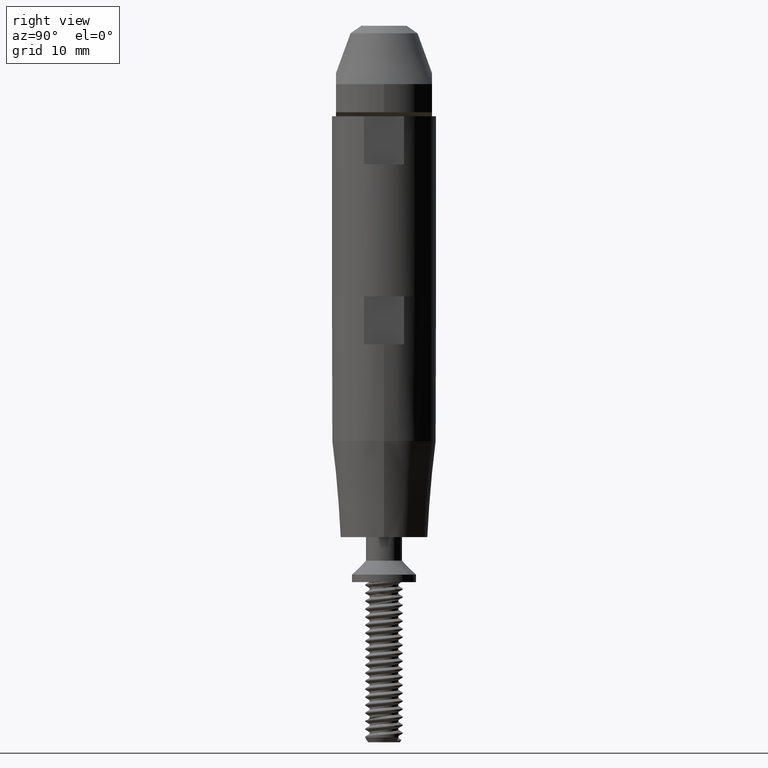
[diagram: clean part render]
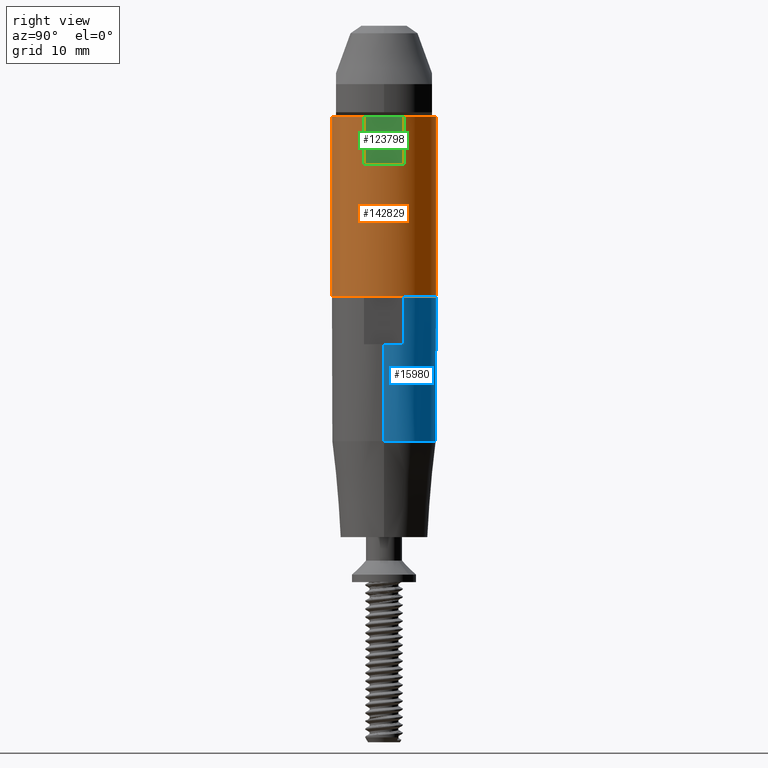
[diagram: same view with three faces highlighted in distinct colors, each labeled with its STEP entity id]
A machine part, right view with three faces highlighted in distinct colors.
Their STEP definitions:

[orange] entity #142829 — the highlighted cylindrical surface (partial cylindrical patch) has radius 6.5 mm, axis along (0, 0, -1).
#6270 = DIRECTION ( 'NONE',  ( -0.000000000000000000, -0.000000000000000000, -1.000000000000000000 ) ) ;
#8505 = VECTOR ( 'NONE', #71061, 1000.000000000000000 ) ;
#11153 = VERTEX_POINT ( 'NONE', #111923 ) ;
#16268 = DIRECTION ( 'NONE',  ( 0.000000000000000000, 0.000000000000000000, 1.000000000000000000 ) ) ;
#19532 = CARTESIAN_POINT ( 'NONE',  ( 5.498664128171615410E-15, 0.000000000000000000, 0.09999999999999939493 ) ) ;
#20202 = AXIS2_PLACEMENT_3D ( 'NONE', #30169, #16268, #90583 ) ;
#21964 = ORIENTED_EDGE ( 'NONE', *, *, #167201, .T. ) ;
#24671 = VERTEX_POINT ( 'NONE', #152047 ) ;
#25791 = VECTOR ( 'NONE', #171270, 1000.000000000000000 ) ;
#30169 = CARTESIAN_POINT ( 'NONE',  ( 5.498664128171615410E-15, 0.000000000000000000, -22.39999999999999858 ) ) ;
#34558 = LINE ( 'NONE', #64284, #25791 ) ;
#37458 = EDGE_CURVE ( 'NONE', #179441, #24671, #156901, .T. ) ;
#37835 = ORIENTED_EDGE ( 'NONE', *, *, #37458, .T. ) ;
#60007 = LINE ( 'NONE', #101637, #193031 ) ;
#64284 = CARTESIAN_POINT ( 'NONE',  ( -6.499999999999989342, 7.960204194457788574E-16, -22.39999999999999858 ) ) ;
#66427 = EDGE_CURVE ( 'NONE', #71959, #102933, #72030, .T. ) ;
#66938 = CARTESIAN_POINT ( 'NONE',  ( 6.499999999999997335, 0.000000000000000000, -22.39999999999999858 ) ) ;
#71061 = DIRECTION ( 'NONE',  ( -0.000000000000000000, -0.000000000000000000, -1.000000000000000000 ) ) ;
#71959 = VERTEX_POINT ( 'NONE', #167718 ) ;
#72030 = LINE ( 'NONE', #191944, #8505 ) ;
#76606 = DIRECTION ( 'NONE',  ( 0.000000000000000000, 0.000000000000000000, 1.000000000000000000 ) ) ;
#77030 = DIRECTION ( 'NONE',  ( 1.000000000000000000, 0.000000000000000000, 0.000000000000000000 ) ) ;
#77033 = AXIS2_PLACEMENT_3D ( 'NONE', #173666, #6270, #83487 ) ;
#81747 = EDGE_CURVE ( 'NONE', #101708, #136375, #60007, .T. ) ;
#83487 = DIRECTION ( 'NONE',  ( 1.000000000000000000, -2.664535259100375303E-15, 0.000000000000000000 ) ) ;
#90583 = DIRECTION ( 'NONE',  ( 1.000000000000000000, 0.000000000000000000, 0.000000000000000000 ) ) ;
#94323 = ORIENTED_EDGE ( 'NONE', *, *, #81747, .F. ) ;
#99872 = AXIS2_PLACEMENT_3D ( 'NONE', #121946, #180473, #182445 ) ;
#101637 = CARTESIAN_POINT ( 'NONE',  ( 6.500000000000000000, 0.000000000000000000, -22.39999999999999858 ) ) ;
#101708 = VERTEX_POINT ( 'NONE', #66938 ) ;
#102933 = VERTEX_POINT ( 'NONE', #114598 ) ;
#110297 = CYLINDRICAL_SURFACE ( 'NONE', #20202, 6.499999999999994671 ) ;
#111923 = CARTESIAN_POINT ( 'NONE',  ( -2.499999999999992450, 5.999999999999994671, -16.39999999999999858 ) ) ;
#112685 = CARTESIAN_POINT ( 'NONE',  ( -2.499999999999988454, 5.999999999999993783, -22.39999999999999858 ) ) ;
#114598 = CARTESIAN_POINT ( 'NONE',  ( 2.499999999999999556, 5.999999999999993783, -22.39999999999999858 ) ) ;
#116610 = EDGE_CURVE ( 'NONE', #136375, #166999, #193749, .T. ) ;
#117753 = AXIS2_PLACEMENT_3D ( 'NONE', #19532, #155270, #77030 ) ;
#121946 = CARTESIAN_POINT ( 'NONE',  ( 5.498664128171615410E-15, 0.000000000000000000, -22.39999999999999858 ) ) ;
#124263 = CIRCLE ( 'NONE', #130639, 6.499999999999992006 ) ;
#130276 = VECTOR ( 'NONE', #188884, 1000.000000000000000 ) ;
#130639 = AXIS2_PLACEMENT_3D ( 'NONE', #195544, #76606, #136093 ) ;
#133203 = EDGE_LOOP ( 'NONE', ( #37835, #143937, #179470, #94323, #21964, #172816, #158033, #187952 ) ) ;
#136093 = DIRECTION ( 'NONE',  ( 1.000000000000000000, 0.000000000000000000, 0.000000000000000000 ) ) ;
#136375 = VERTEX_POINT ( 'NONE', #188554 ) ;
#140060 = FACE_OUTER_BOUND ( 'NONE', #133203, .T. ) ;
#142829 = ADVANCED_FACE ( 'NONE', ( #140060 ), #110297, .T. ) ;
#143937 = ORIENTED_EDGE ( 'NONE', *, *, #181100, .T. ) ;
#145480 = EDGE_CURVE ( 'NONE', #11153, #71959, #162506, .T. ) ;
#152047 = CARTESIAN_POINT ( 'NONE',  ( -6.499999999999986677, 7.960204194457786602E-16, -22.39999999999999858 ) ) ;
#155270 = DIRECTION ( 'NONE',  ( 0.000000000000000000, 0.000000000000000000, 1.000000000000000000 ) ) ;
#156901 = CIRCLE ( 'NONE', #99872, 6.499999999999992006 ) ;
#158033 = ORIENTED_EDGE ( 'NONE', *, *, #145480, .F. ) ;
#162083 = CARTESIAN_POINT ( 'NONE',  ( -2.499999999999994671, 5.999999999999993783, -22.39999999999999858 ) ) ;
#162506 = CIRCLE ( 'NONE', #77033, 6.499999999999994671 ) ;
#165831 = CARTESIAN_POINT ( 'NONE',  ( -6.499999999999992006, 7.960204194457792519E-16, 0.09999999999999939493 ) ) ;
#166999 = VERTEX_POINT ( 'NONE', #165831 ) ;
#167201 = EDGE_CURVE ( 'NONE', #101708, #102933, #124263, .T. ) ;
#167718 = CARTESIAN_POINT ( 'NONE',  ( 2.500000000000003553, 5.999999999999994671, -16.39999999999999858 ) ) ;
#171270 = DIRECTION ( 'NONE',  ( 0.000000000000000000, 0.000000000000000000, 1.000000000000000000 ) ) ;
#172816 = ORIENTED_EDGE ( 'NONE', *, *, #66427, .F. ) ;
#173666 = CARTESIAN_POINT ( 'NONE',  ( 5.498664128171615410E-15, 0.000000000000000000, -16.39999999999999858 ) ) ;
#179441 = VERTEX_POINT ( 'NONE', #112685 ) ;
#179470 = ORIENTED_EDGE ( 'NONE', *, *, #116610, .F. ) ;
#180473 = DIRECTION ( 'NONE',  ( 0.000000000000000000, 0.000000000000000000, 1.000000000000000000 ) ) ;
#181100 = EDGE_CURVE ( 'NONE', #24671, #166999, #34558, .T. ) ;
#182445 = DIRECTION ( 'NONE',  ( 1.000000000000000000, 0.000000000000000000, 0.000000000000000000 ) ) ;
#187952 = ORIENTED_EDGE ( 'NONE', *, *, #189163, .F. ) ;
#188554 = CARTESIAN_POINT ( 'NONE',  ( 6.500000000000002665, 0.000000000000000000, 0.09999999999999939493 ) ) ;
#188884 = DIRECTION ( 'NONE',  ( 0.000000000000000000, 0.000000000000000000, 1.000000000000000000 ) ) ;
#189163 = EDGE_CURVE ( 'NONE', #179441, #11153, #191807, .T. ) ;
#191807 = LINE ( 'NONE', #162083, #130276 ) ;
#191944 = CARTESIAN_POINT ( 'NONE',  ( 2.500000000000006217, 5.999999999999993783, -22.39999999999999858 ) ) ;
#193031 = VECTOR ( 'NONE', #194758, 1000.000000000000000 ) ;
#193749 = CIRCLE ( 'NONE', #117753, 6.499999999999997335 ) ;
#194758 = DIRECTION ( 'NONE',  ( 0.000000000000000000, 0.000000000000000000, 1.000000000000000000 ) ) ;
#195544 = CARTESIAN_POINT ( 'NONE',  ( 5.498664128171615410E-15, 0.000000000000000000, -22.39999999999999858 ) ) ;

[blue] entity #15980 — the highlighted cylindrical surface (partial cylindrical patch) has radius 6.5 mm, axis along (-0, -0, -1).
#979 = CARTESIAN_POINT ( 'NONE',  ( 2.499999999999996447, 6.002047320261127972, -30.09959182389931343 ) ) ;
#2410 = CARTESIAN_POINT ( 'NONE',  ( 7.957869726441623705E-16, 6.501639212630417219, -24.09955781502654659 ) ) ;
#4279 = B_SPLINE_CURVE_WITH_KNOTS ( 'NONE', 3,
 ( #6827, #97917, #171298, #35556 ),
 .UNSPECIFIED., .F., .F.,
 ( 4, 4 ),
 ( 0.01432015769314673101, 0.02032100799488484322 ),
 .UNSPECIFIED. ) ;
#6827 = CARTESIAN_POINT ( 'NONE',  ( 2.499999999999996447, -5.997952651980388517, -30.10040803684563926 ) ) ;
#6976 = DIRECTION ( 'NONE',  ( -3.890780017952552531E-20, -6.801774552721954483E-05, 0.9999999976867932627 ) ) ;
#7423 = VECTOR ( 'NONE', #123996, 1000.000000000000114 ) ;
#8846 = VERTEX_POINT ( 'NONE', #19231 ) ;
#9880 =( BOUNDED_CURVE ( )  B_SPLINE_CURVE ( 3, ( #129824, #52592, #128859, #144712 ),
 .UNSPECIFIED., .F., .F. ) 
 B_SPLINE_CURVE_WITH_KNOTS ( ( 4, 4 ),
 ( 5.888230953732074724, 6.283185307179586232 ),
 .UNSPECIFIED. ) 
 CURVE ( )  GEOMETRIC_REPRESENTATION_ITEM ( )  RATIONAL_B_SPLINE_CURVE ( ( 1.000000000000000000, 0.9870431106927288756, 0.9870431106927288756, 1.000000000000000000 ) ) 
 REPRESENTATION_ITEM ( '' )  );
#10086 = CARTESIAN_POINT ( 'NONE',  ( 1.704545687218697925, 6.332926186950305514, -24.09955781502655014 ) ) ;
#12352 = B_SPLINE_CURVE_WITH_KNOTS ( 'NONE', 3,
 ( #43492, #167306, #60322, #135618 ),
 .UNSPECIFIED., .F., .F.,
 ( 4, 4 ),
 ( 0.01432012368444946643, 0.02032015777330390544 ),
 .UNSPECIFIED. ) ;
#15980 = ADVANCED_FACE ( 'NONE', ( #34965 ), #45929, .T. ) ;
#19231 = CARTESIAN_POINT ( 'NONE',  ( 2.499020313645084812, 6.002047320261126195, -24.09955781502654659 ) ) ;
#20753 = ORIENTED_EDGE ( 'NONE', *, *, #38898, .F. ) ;
#30850 = ORIENTED_EDGE ( 'NONE', *, *, #155132, .F. ) ;
#32050 = DIRECTION ( 'NONE',  ( 0.000000000000000000, -0.9999999976867931517, -6.801774552723965678E-05 ) ) ;
#33563 = CARTESIAN_POINT ( 'NONE',  ( -7.042311832494122019E-19, -6.499183772017827820, -12.00044208758744091 ) ) ;
#34965 = FACE_OUTER_BOUND ( 'NONE', #101267, .T. ) ;
#35370 = AXIS2_PLACEMENT_3D ( 'NONE', #83836, #53131, #38267 ) ;
#35556 = CARTESIAN_POINT ( 'NONE',  ( 2.500979369175577727, -5.997952651980387628, -24.09955781502654659 ) ) ;
#37566 = VERTEX_POINT ( 'NONE', #44711 ) ;
#38267 = DIRECTION ( 'NONE',  ( 0.000000000000000000, -0.9999999976867931517, -6.801774552723967033E-05 ) ) ;
#38898 = EDGE_CURVE ( 'NONE', #8846, #61625, #12352, .T. ) ;
#43492 = CARTESIAN_POINT ( 'NONE',  ( 2.499020313645084812, 6.002047320261126195, -24.09955781502654659 ) ) ;
#44711 = CARTESIAN_POINT ( 'NONE',  ( 2.499999999999996447, -5.997952651980388517, -30.10040803684563926 ) ) ;
#45929 = CYLINDRICAL_SURFACE ( 'NONE', #167165, 6.499999999999999112 ) ;
#46781 = LINE ( 'NONE', #152782, #7423 ) ;
#48901 = VERTEX_POINT ( 'NONE', #2410 ) ;
#52592 = CARTESIAN_POINT ( 'NONE',  ( 1.705946943227672596, -6.329368480618994930, -24.09955781502654659 ) ) ;
#53131 = DIRECTION ( 'NONE',  ( -3.890780017952552531E-20, -6.801774552721954483E-05, 0.9999999976867932627 ) ) ;
#58515 =( BOUNDED_CURVE ( )  B_SPLINE_CURVE ( 3, ( #85353, #145799, #10086, #165561 ),
 .UNSPECIFIED., .F., .F. ) 
 B_SPLINE_CURVE_WITH_KNOTS ( ( 4, 4 ),
 ( 3.141592653589793116, 3.536220497783611361 ),
 .UNSPECIFIED. ) 
 CURVE ( )  GEOMETRIC_REPRESENTATION_ITEM ( )  RATIONAL_B_SPLINE_CURVE ( ( 1.000000000000000000, 0.9870644552692315887, 0.9870644552692315887, 1.000000000000000000 ) ) 
 REPRESENTATION_ITEM ( '' )  );
#60322 = CARTESIAN_POINT ( 'NONE',  ( 2.499673512970920886, 6.002047320261127084, -28.09958048759612836 ) ) ;
#61625 = VERTEX_POINT ( 'NONE', #979 ) ;
#66407 = DIRECTION ( 'NONE',  ( 0.000000000000000000, -0.9999999976867931517, -6.801774552723964323E-05 ) ) ;
#66530 = CARTESIAN_POINT ( 'NONE',  ( 7.953161882625301778E-16, 6.500816197910482153, -11.99955785689558674 ) ) ;
#76080 = VERTEX_POINT ( 'NONE', #66530 ) ;
#76664 = ORIENTED_EDGE ( 'NONE', *, *, #180405, .F. ) ;
#83836 = CARTESIAN_POINT ( 'NONE',  ( 9.839809946264257447E-39, 0.002047334140369308237, -30.09999993037247634 ) ) ;
#85353 = CARTESIAN_POINT ( 'NONE',  ( 7.957869726441623705E-16, 6.501639212630417219, -24.09955781502654659 ) ) ;
#85600 = CARTESIAN_POINT ( 'NONE',  ( -2.334812050883148004E-19, -6.498360817441271031, -24.09955781502654659 ) ) ;
#88044 = CARTESIAN_POINT ( 'NONE',  ( 2.500979369175577727, -5.997952651980387628, -24.09955781502654659 ) ) ;
#97917 = CARTESIAN_POINT ( 'NONE',  ( 2.500326531442664368, -5.997952651980387628, -28.10012462958486168 ) ) ;
#101267 = EDGE_LOOP ( 'NONE', ( #30850, #104338, #179649, #119076, #76664, #162608, #170510, #20753 ) ) ;
#104338 = ORIENTED_EDGE ( 'NONE', *, *, #137278, .T. ) ;
#119076 = ORIENTED_EDGE ( 'NONE', *, *, #143260, .F. ) ;
#122173 = DIRECTION ( 'NONE',  ( -3.890780017952552531E-20, -6.801774552721954483E-05, 0.9999999976867932627 ) ) ;
#123996 = DIRECTION ( 'NONE',  ( -3.890780017952552531E-20, -6.801774552721954483E-05, 0.9999999976867931517 ) ) ;
#125023 = VERTEX_POINT ( 'NONE', #88044 ) ;
#128859 = CARTESIAN_POINT ( 'NONE',  ( 0.8613437230703351322, -6.498360817441271031, -24.09955781502654659 ) ) ;
#129824 = CARTESIAN_POINT ( 'NONE',  ( 2.500979369175577727, -5.997952651980387628, -24.09955781502654659 ) ) ;
#133209 = EDGE_CURVE ( 'NONE', #182477, #76080, #171892, .T. ) ;
#135618 = CARTESIAN_POINT ( 'NONE',  ( 2.499999999999996447, 6.002047320261127972, -30.09959182389931343 ) ) ;
#137278 = EDGE_CURVE ( 'NONE', #48901, #76080, #46781, .T. ) ;
#138702 = VERTEX_POINT ( 'NONE', #85600 ) ;
#142992 = CIRCLE ( 'NONE', #35370, 6.499999999999998224 ) ;
#143260 = EDGE_CURVE ( 'NONE', #138702, #182477, #156887, .T. ) ;
#144712 = CARTESIAN_POINT ( 'NONE',  ( -2.334812050883148004E-19, -6.498360817441271031, -24.09955781502654659 ) ) ;
#145621 = CARTESIAN_POINT ( 'NONE',  ( -7.042311832494122019E-19, 0.0008162129463266339958, -11.99999997224151294 ) ) ;
#145799 = CARTESIAN_POINT ( 'NONE',  ( 0.8606223073743540786, 6.501639212630417219, -24.09955781502655014 ) ) ;
#152782 = CARTESIAN_POINT ( 'NONE',  ( 7.960204194457795477E-16, 6.502047319104524270, -30.09955781502655014 ) ) ;
#155132 = EDGE_CURVE ( 'NONE', #48901, #8846, #58515, .T. ) ;
#155837 = CARTESIAN_POINT ( 'NONE',  ( 0.000000000000000000, 0.002047334140369308237, -30.09999993037247634 ) ) ;
#156887 = LINE ( 'NONE', #174667, #175220 ) ;
#157853 = DIRECTION ( 'NONE',  ( -3.890780017952552531E-20, -6.801774552721954483E-05, 0.9999999976867931517 ) ) ;
#159296 = AXIS2_PLACEMENT_3D ( 'NONE', #145621, #6976, #66407 ) ;
#162608 = ORIENTED_EDGE ( 'NONE', *, *, #171460, .F. ) ;
#165561 = CARTESIAN_POINT ( 'NONE',  ( 2.499020313645084812, 6.002047320261126195, -24.09955781502654659 ) ) ;
#167165 = AXIS2_PLACEMENT_3D ( 'NONE', #155837, #122173, #32050 ) ;
#167306 = CARTESIAN_POINT ( 'NONE',  ( 2.499346950882034957, 6.002047320261126195, -26.09956915130520017 ) ) ;
#170510 = ORIENTED_EDGE ( 'NONE', *, *, #189165, .T. ) ;
#171298 = CARTESIAN_POINT ( 'NONE',  ( 2.500652987805157323, -5.997952651980387628, -26.09984122231182013 ) ) ;
#171460 = EDGE_CURVE ( 'NONE', #37566, #125023, #4279, .T. ) ;
#171892 = CIRCLE ( 'NONE', #159296, 6.500000000000000888 ) ;
#174667 = CARTESIAN_POINT ( 'NONE',  ( 0.000000000000000000, -6.497952650823784815, -30.10044204571840254 ) ) ;
#175220 = VECTOR ( 'NONE', #157853, 1000.000000000000114 ) ;
#179649 = ORIENTED_EDGE ( 'NONE', *, *, #133209, .F. ) ;
#180405 = EDGE_CURVE ( 'NONE', #125023, #138702, #9880, .T. ) ;
#182477 = VERTEX_POINT ( 'NONE', #33563 ) ;
#189165 = EDGE_CURVE ( 'NONE', #37566, #61625, #142992, .T. ) ;

[green] entity #123798 — the highlighted planar face has unit normal (-1, 0, -0).
#292 = CARTESIAN_POINT ( 'NONE',  ( -6.499999999999992006, 5.999999999999994671, -16.39999999999999858 ) ) ;
#8505 = VECTOR ( 'NONE', #71061, 1000.000000000000000 ) ;
#11153 = VERTEX_POINT ( 'NONE', #111923 ) ;
#16109 = DIRECTION ( 'NONE',  ( 1.000000000000000000, -0.000000000000000000, -0.000000000000000000 ) ) ;
#20511 = EDGE_CURVE ( 'NONE', #11153, #71959, #73587, .T. ) ;
#24431 = DIRECTION ( 'NONE',  ( 0.000000000000000000, -1.445602896647338917E-16, -1.000000000000000000 ) ) ;
#26360 = ORIENTED_EDGE ( 'NONE', *, *, #168585, .T. ) ;
#34761 = LINE ( 'NONE', #122940, #86241 ) ;
#58538 = ORIENTED_EDGE ( 'NONE', *, *, #20511, .T. ) ;
#66427 = EDGE_CURVE ( 'NONE', #71959, #102933, #72030, .T. ) ;
#69986 = FACE_OUTER_BOUND ( 'NONE', #169079, .T. ) ;
#71061 = DIRECTION ( 'NONE',  ( -0.000000000000000000, -0.000000000000000000, -1.000000000000000000 ) ) ;
#71959 = VERTEX_POINT ( 'NONE', #167718 ) ;
#72030 = LINE ( 'NONE', #191944, #8505 ) ;
#73587 = LINE ( 'NONE', #292, #99465 ) ;
#82383 = ORIENTED_EDGE ( 'NONE', *, *, #189163, .T. ) ;
#86241 = VECTOR ( 'NONE', #172452, 1000.000000000000000 ) ;
#92943 = AXIS2_PLACEMENT_3D ( 'NONE', #111617, #110636, #24431 ) ;
#99465 = VECTOR ( 'NONE', #16109, 1000.000000000000000 ) ;
#102933 = VERTEX_POINT ( 'NONE', #114598 ) ;
#110636 = DIRECTION ( 'NONE',  ( 0.000000000000000000, -1.000000000000000000, 1.445602896647338917E-16 ) ) ;
#111617 = CARTESIAN_POINT ( 'NONE',  ( -6.499999999999992006, 5.999999999999993783, -22.39999999999999858 ) ) ;
#111923 = CARTESIAN_POINT ( 'NONE',  ( -2.499999999999992450, 5.999999999999994671, -16.39999999999999858 ) ) ;
#112685 = CARTESIAN_POINT ( 'NONE',  ( -2.499999999999988454, 5.999999999999993783, -22.39999999999999858 ) ) ;
#114598 = CARTESIAN_POINT ( 'NONE',  ( 2.499999999999999556, 5.999999999999993783, -22.39999999999999858 ) ) ;
#122940 = CARTESIAN_POINT ( 'NONE',  ( 6.499999999999997335, 5.999999999999993783, -22.39999999999999858 ) ) ;
#123798 = ADVANCED_FACE ( 'NONE', ( #69986 ), #186953, .F. ) ;
#130276 = VECTOR ( 'NONE', #188884, 1000.000000000000000 ) ;
#162083 = CARTESIAN_POINT ( 'NONE',  ( -2.499999999999994671, 5.999999999999993783, -22.39999999999999858 ) ) ;
#167718 = CARTESIAN_POINT ( 'NONE',  ( 2.500000000000003553, 5.999999999999994671, -16.39999999999999858 ) ) ;
#168585 = EDGE_CURVE ( 'NONE', #102933, #179441, #34761, .T. ) ;
#169079 = EDGE_LOOP ( 'NONE', ( #176516, #26360, #82383, #58538 ) ) ;
#172452 = DIRECTION ( 'NONE',  ( -1.000000000000000000, 0.000000000000000000, 0.000000000000000000 ) ) ;
#176516 = ORIENTED_EDGE ( 'NONE', *, *, #66427, .T. ) ;
#179441 = VERTEX_POINT ( 'NONE', #112685 ) ;
#186953 = PLANE ( 'NONE',  #92943 ) ;
#188884 = DIRECTION ( 'NONE',  ( 0.000000000000000000, 0.000000000000000000, 1.000000000000000000 ) ) ;
#189163 = EDGE_CURVE ( 'NONE', #179441, #11153, #191807, .T. ) ;
#191807 = LINE ( 'NONE', #162083, #130276 ) ;
#191944 = CARTESIAN_POINT ( 'NONE',  ( 2.500000000000006217, 5.999999999999993783, -22.39999999999999858 ) ) ;